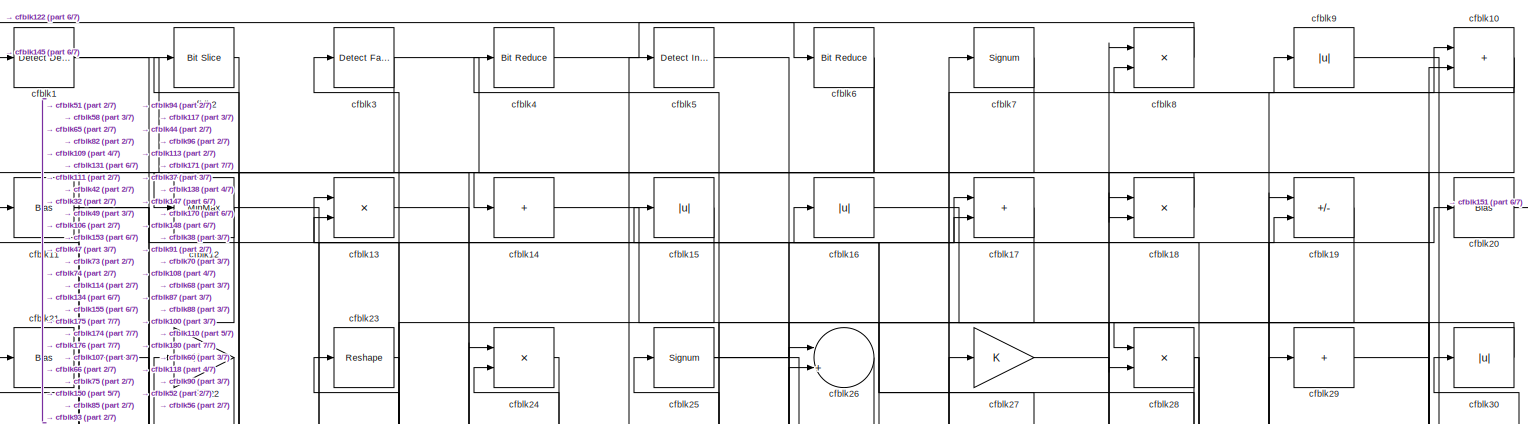
[diagram: root canvas - part 1/7, full width, top band]
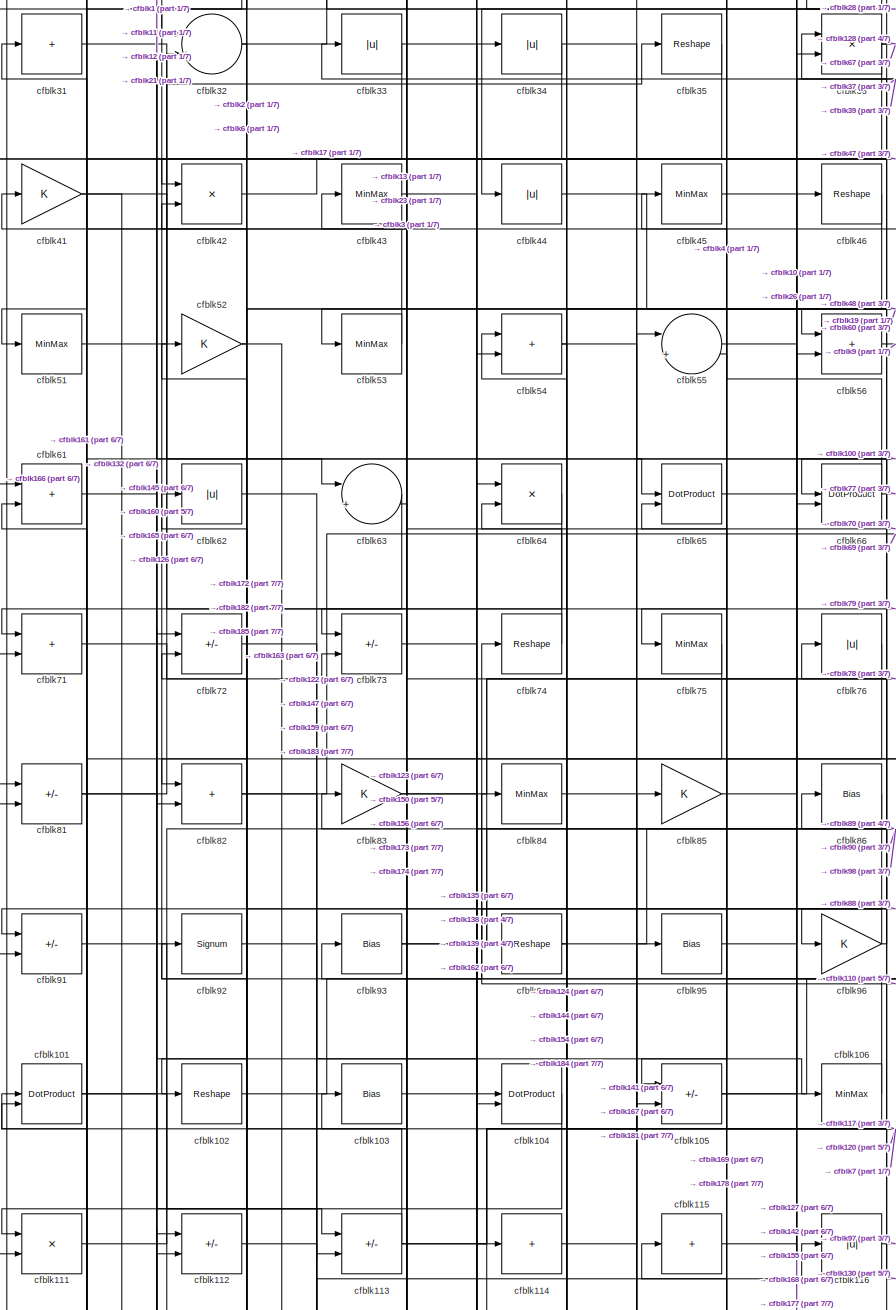
[diagram: root canvas - part 2/7, middle left region]
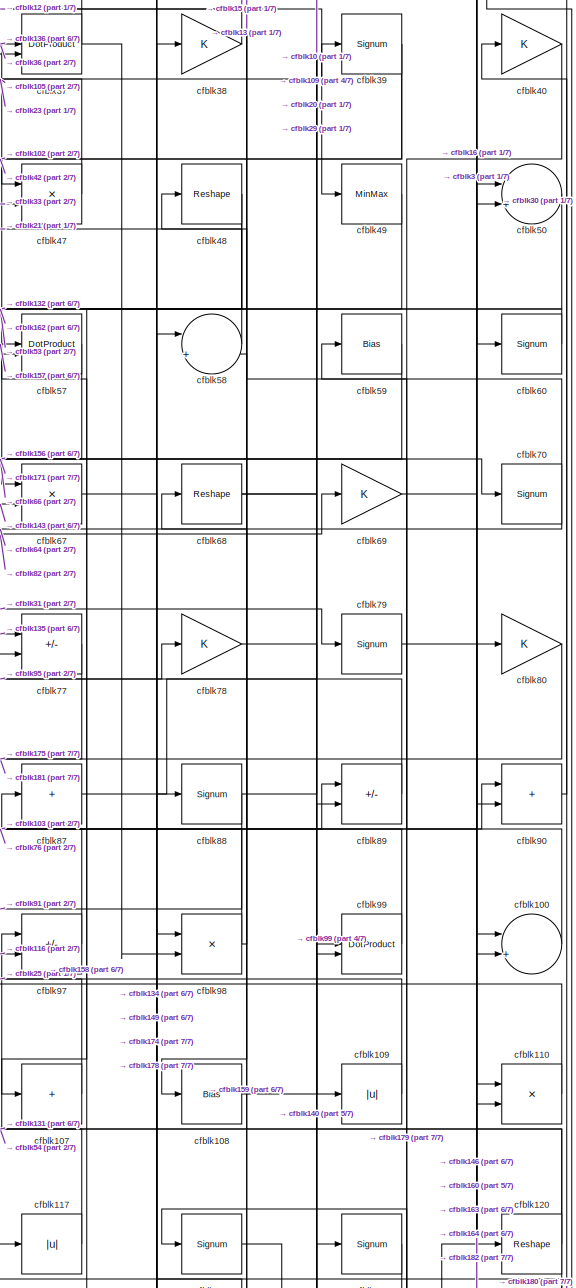
[diagram: root canvas - part 3/7, middle right region]
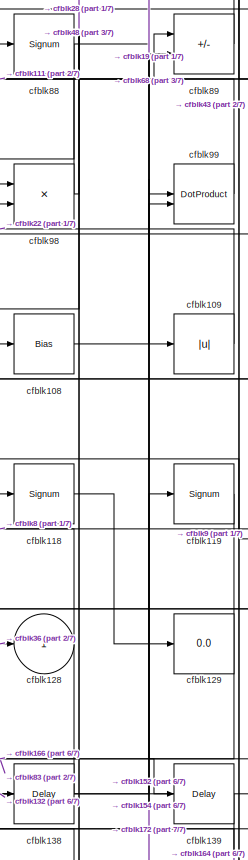
[diagram: root canvas - part 4/7, middle right region]
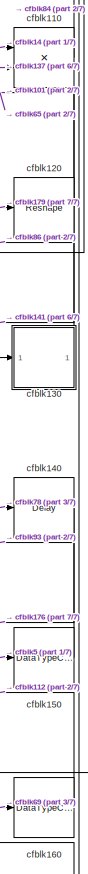
[diagram: root canvas - part 5/7, bottom right region]
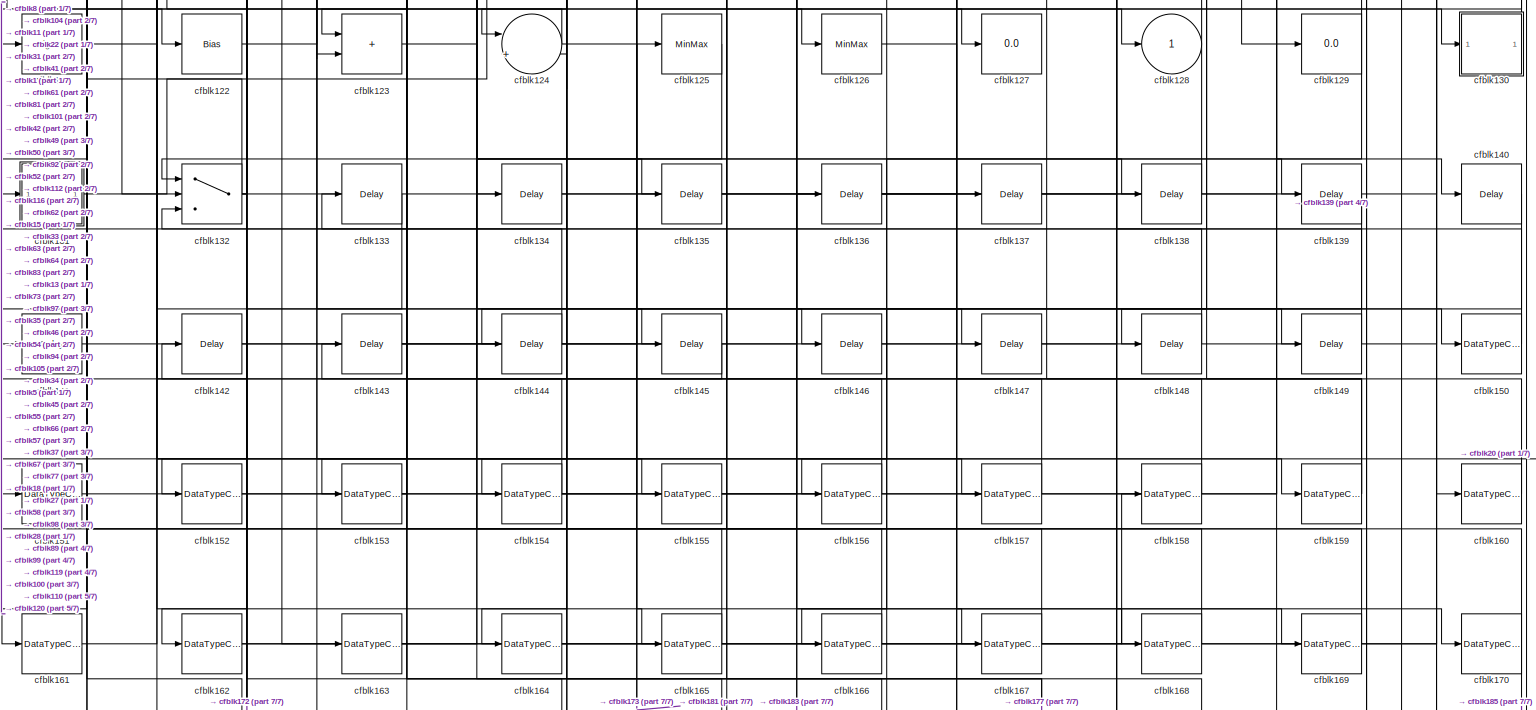
[diagram: root canvas - part 6/7, full width, bottom band]
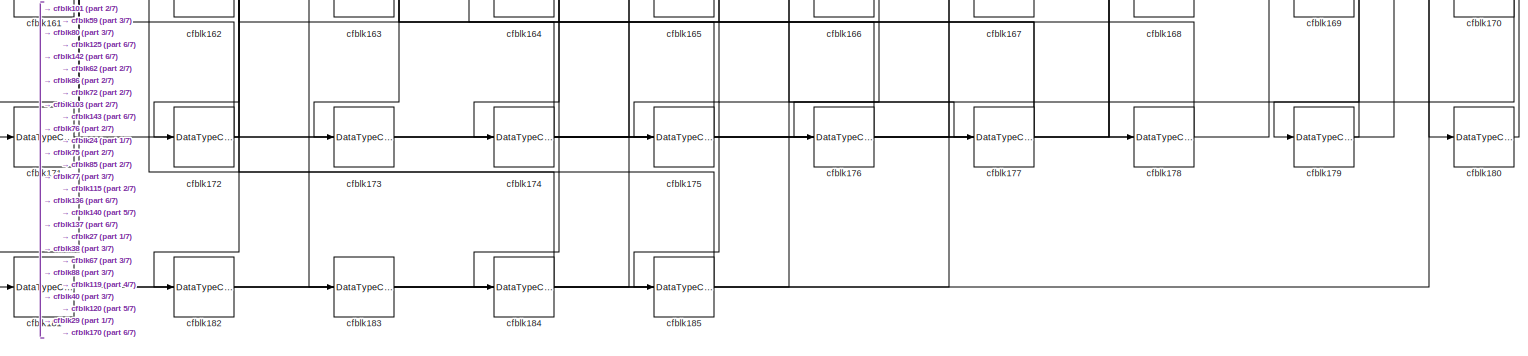
[diagram: root canvas - part 7/7, full width, bottom band]
MODEL slx_fc5fd046897e
KIND model
CONFIG AbsTol = auto
CONFIG EnableMultiTasking = off
CONFIG FixedStep = auto
CONFIG MaxStep = auto
CONFIG MinStep = auto
CONFIG RelTol = 1e-3
CONFIG SampleTimeConstraint = Unconstrained
CONFIG SolverName = VariableStepAuto
CONFIG StartTime = 0.0
CONFIG StopTime = 10.0
BLOCK [Reference] cfblk1  REF=simulink/Logic and Bit
Operations/Detect
Decrease
  LibrarySourceBlock = hdlsllib/Logic and Bit\nOperations/Detect\nDecrease
  SourceBlock = simulink/Logic and Bit\nOperations/Detect\nDecrease
  SourceType = Detect Decrease
BLOCK [Sum] cfblk10
  IconShape = rectangular
BLOCK [Sum] cfblk100
  Inputs = |++
BLOCK [DotProduct] cfblk101
  OutDataTypeStr = Inherit: Inherit via internal rule
BLOCK [Reshape] cfblk102
BLOCK [Bias] cfblk103
  Bias = 0.0
  SaturateOnIntegerOverflow = off
BLOCK [DotProduct] cfblk104
  OutDataTypeStr = Inherit: Inherit via internal rule
BLOCK [Sum] cfblk105
  IconShape = rectangular
  Inputs = +-
BLOCK [MinMax] cfblk106
BLOCK [Sum] cfblk107
  IconShape = rectangular
  Inputs = +
BLOCK [Bias] cfblk108
  Bias = 0.0
  SaturateOnIntegerOverflow = off
BLOCK [Abs] cfblk109
  SaturateOnIntegerOverflow = off
BLOCK [Bias] cfblk11
  Bias = 0.0
  SaturateOnIntegerOverflow = off
BLOCK [Product] cfblk110
  Inputs = */
  RndMeth = Zero
  SaturateOnIntegerOverflow = on
BLOCK [Product] cfblk111
  Inputs = */
  RndMeth = Zero
  SaturateOnIntegerOverflow = on
BLOCK [Sum] cfblk112
  IconShape = rectangular
  Inputs = +-
BLOCK [Sum] cfblk113
  IconShape = rectangular
  Inputs = +-
BLOCK [Sum] cfblk114
  IconShape = rectangular
  Inputs = +
BLOCK [Sum] cfblk115
  IconShape = rectangular
  Inputs = +
BLOCK [Abs] cfblk116
  SaturateOnIntegerOverflow = off
BLOCK [Abs] cfblk117
  SaturateOnIntegerOverflow = off
BLOCK [Signum] cfblk118
BLOCK [Signum] cfblk119
BLOCK [MinMax] cfblk12
BLOCK [Reshape] cfblk120
BLOCK [Signum] cfblk121
BLOCK [Bias] cfblk122
  Bias = 0.0
  SaturateOnIntegerOverflow = off
BLOCK [Sum] cfblk123
  IconShape = rectangular
BLOCK [Sum] cfblk124
  Inputs = |++
BLOCK [MinMax] cfblk125
BLOCK [MinMax] cfblk126
BLOCK [Display] cfblk127
  Decimation = 1
BLOCK [Outport] cfblk128
  VectorParamsAs1DForOutWhenUnconnected = off
BLOCK [Display] cfblk129
  Decimation = 1
BLOCK [Product] cfblk13
  Inputs = */
  RndMeth = Zero
  SaturateOnIntegerOverflow = on
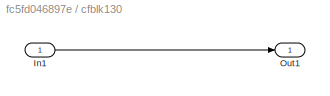
BLOCK [SubSystem] cfblk130
  LibrarySourceBlock = hdlsllib/Ports &\nSubsystems/Subsystem
BLOCK [Inport] cfblk130/In1
BLOCK [Outport] cfblk130/Out1
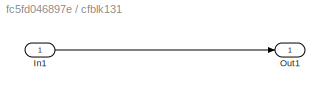
BLOCK [SubSystem] cfblk131
  LibrarySourceBlock = hdlsllib/Ports &\nSubsystems/Subsystem
BLOCK [Inport] cfblk131/In1
BLOCK [Outport] cfblk131/Out1
BLOCK [Switch] cfblk132
  InputSameDT = off
  SaturateOnIntegerOverflow = off
BLOCK [Delay] cfblk133
  InputPortMap = u0
  SampleTime = 1
BLOCK [Delay] cfblk134
  InputPortMap = u0
  SampleTime = 1
BLOCK [Delay] cfblk135
  InputPortMap = u0
  SampleTime = 1
BLOCK [Delay] cfblk136
  InputPortMap = u0
  SampleTime = 1
BLOCK [Delay] cfblk137
  InputPortMap = u0
  SampleTime = 1
BLOCK [Delay] cfblk138
  InputPortMap = u0
  SampleTime = 1
BLOCK [Delay] cfblk139
  InputPortMap = u0
  SampleTime = 1
BLOCK [Sum] cfblk14
  IconShape = rectangular
  Inputs = +
BLOCK [Delay] cfblk140
  InputPortMap = u0
  SampleTime = 1
BLOCK [Delay] cfblk141
  InputPortMap = u0
  SampleTime = 1
BLOCK [Delay] cfblk142
  InputPortMap = u0
  SampleTime = 1
BLOCK [Delay] cfblk143
  InputPortMap = u0
  SampleTime = 1
BLOCK [Delay] cfblk144
  InputPortMap = u0
  SampleTime = 1
BLOCK [Delay] cfblk145
  InputPortMap = u0
  SampleTime = 1
BLOCK [Delay] cfblk146
  InputPortMap = u0
  SampleTime = 1
BLOCK [Delay] cfblk147
  InputPortMap = u0
  SampleTime = 1
BLOCK [Delay] cfblk148
  InputPortMap = u0
  SampleTime = 1
BLOCK [Delay] cfblk149
  InputPortMap = u0
  SampleTime = 1
BLOCK [Abs] cfblk15
  SaturateOnIntegerOverflow = off
BLOCK [DataTypeConversion] cfblk150
  OutDataTypeStr = uint8
  RndMeth = Floor
  SaturateOnIntegerOverflow = off
BLOCK [DataTypeConversion] cfblk151
  OutDataTypeStr = uint8
  RndMeth = Floor
  SaturateOnIntegerOverflow = off
BLOCK [DataTypeConversion] cfblk152
  OutDataTypeStr = uint8
  RndMeth = Floor
  SaturateOnIntegerOverflow = off
BLOCK [DataTypeConversion] cfblk153
  OutDataTypeStr = uint8
  RndMeth = Floor
  SaturateOnIntegerOverflow = off
BLOCK [DataTypeConversion] cfblk154
  RndMeth = Floor
  SaturateOnIntegerOverflow = off
BLOCK [DataTypeConversion] cfblk155
  OutDataTypeStr = uint8
  RndMeth = Floor
  SaturateOnIntegerOverflow = off
BLOCK [DataTypeConversion] cfblk156
  OutDataTypeStr = uint8
  RndMeth = Floor
  SaturateOnIntegerOverflow = off
BLOCK [DataTypeConversion] cfblk157
  OutDataTypeStr = uint8
  RndMeth = Floor
  SaturateOnIntegerOverflow = off
BLOCK [DataTypeConversion] cfblk158
  OutDataTypeStr = uint8
  RndMeth = Floor
  SaturateOnIntegerOverflow = off
BLOCK [DataTypeConversion] cfblk159
  RndMeth = Floor
  SaturateOnIntegerOverflow = off
BLOCK [Abs] cfblk16
  SaturateOnIntegerOverflow = off
BLOCK [DataTypeConversion] cfblk160
  OutDataTypeStr = uint8
  RndMeth = Floor
  SaturateOnIntegerOverflow = off
BLOCK [DataTypeConversion] cfblk161
  OutDataTypeStr = uint8
  RndMeth = Floor
  SaturateOnIntegerOverflow = off
BLOCK [DataTypeConversion] cfblk162
  RndMeth = Floor
  SaturateOnIntegerOverflow = off
BLOCK [DataTypeConversion] cfblk163
  OutDataTypeStr = uint8
  RndMeth = Floor
  SaturateOnIntegerOverflow = off
BLOCK [DataTypeConversion] cfblk164
  OutDataTypeStr = uint8
  RndMeth = Floor
  SaturateOnIntegerOverflow = off
BLOCK [DataTypeConversion] cfblk165
  OutDataTypeStr = uint8
  RndMeth = Floor
  SaturateOnIntegerOverflow = off
BLOCK [DataTypeConversion] cfblk166
  OutDataTypeStr = uint8
  RndMeth = Floor
  SaturateOnIntegerOverflow = off
BLOCK [DataTypeConversion] cfblk167
  OutDataTypeStr = uint8
  RndMeth = Floor
  SaturateOnIntegerOverflow = off
BLOCK [DataTypeConversion] cfblk168
  OutDataTypeStr = uint8
  RndMeth = Floor
  SaturateOnIntegerOverflow = off
BLOCK [DataTypeConversion] cfblk169
  OutDataTypeStr = uint8
  RndMeth = Floor
  SaturateOnIntegerOverflow = off
BLOCK [Sum] cfblk17
  IconShape = rectangular
BLOCK [DataTypeConversion] cfblk170
  RndMeth = Floor
  SaturateOnIntegerOverflow = off
BLOCK [DataTypeConversion] cfblk171
  OutDataTypeStr = uint8
  RndMeth = Floor
  SaturateOnIntegerOverflow = off
BLOCK [DataTypeConversion] cfblk172
  RndMeth = Floor
  SaturateOnIntegerOverflow = off
BLOCK [DataTypeConversion] cfblk173
  OutDataTypeStr = uint8
  RndMeth = Floor
  SaturateOnIntegerOverflow = off
BLOCK [DataTypeConversion] cfblk174
  RndMeth = Floor
  SaturateOnIntegerOverflow = off
BLOCK [DataTypeConversion] cfblk175
  OutDataTypeStr = uint8
  RndMeth = Floor
  SaturateOnIntegerOverflow = off
BLOCK [DataTypeConversion] cfblk176
  OutDataTypeStr = uint8
  RndMeth = Floor
  SaturateOnIntegerOverflow = off
BLOCK [DataTypeConversion] cfblk177
  RndMeth = Floor
  SaturateOnIntegerOverflow = off
BLOCK [DataTypeConversion] cfblk178
  OutDataTypeStr = uint8
  RndMeth = Floor
  SaturateOnIntegerOverflow = off
BLOCK [DataTypeConversion] cfblk179
  RndMeth = Floor
  SaturateOnIntegerOverflow = off
BLOCK [Product] cfblk18
  Inputs = */
  RndMeth = Zero
  SaturateOnIntegerOverflow = on
BLOCK [DataTypeConversion] cfblk180
  OutDataTypeStr = uint8
  RndMeth = Floor
  SaturateOnIntegerOverflow = off
BLOCK [DataTypeConversion] cfblk181
  RndMeth = Floor
  SaturateOnIntegerOverflow = off
BLOCK [DataTypeConversion] cfblk182
  OutDataTypeStr = uint8
  RndMeth = Floor
  SaturateOnIntegerOverflow = off
BLOCK [DataTypeConversion] cfblk183
  OutDataTypeStr = uint8
  RndMeth = Floor
  SaturateOnIntegerOverflow = off
BLOCK [DataTypeConversion] cfblk184
  OutDataTypeStr = uint8
  RndMeth = Floor
  SaturateOnIntegerOverflow = off
BLOCK [DataTypeConversion] cfblk185
  OutDataTypeStr = uint8
  RndMeth = Floor
  SaturateOnIntegerOverflow = off
BLOCK [Sum] cfblk19
  IconShape = rectangular
  Inputs = +-
BLOCK [Reference] cfblk2  REF=hdlsllib/Logic and Bit
Operations/Bit Slice
  SourceBlock = hdlsllib/Logic and Bit\nOperations/Bit Slice
  SourceType = Bit Slice
BLOCK [Bias] cfblk20
  Bias = 0.0
  SaturateOnIntegerOverflow = off
BLOCK [Bias] cfblk21
  Bias = 0.0
  SaturateOnIntegerOverflow = off
BLOCK [Gain] cfblk22
BLOCK [Reshape] cfblk23
BLOCK [Product] cfblk24
  Inputs = */
  RndMeth = Zero
  SaturateOnIntegerOverflow = on
BLOCK [Signum] cfblk25
BLOCK [Sum] cfblk26
  Inputs = |++
BLOCK [Gain] cfblk27
BLOCK [Product] cfblk28
  Inputs = */
  RndMeth = Zero
  SaturateOnIntegerOverflow = on
BLOCK [Sum] cfblk29
  IconShape = rectangular
  Inputs = +
BLOCK [Reference] cfblk3  REF=hdlsllib/Logic and Bit
Operations/Detect Fall
Negative
  SourceBlock = hdlsllib/Logic and Bit\nOperations/Detect Fall\nNegative
  SourceType = Detect Fall Negative
BLOCK [Abs] cfblk30
  SaturateOnIntegerOverflow = off
BLOCK [Sum] cfblk31
  IconShape = rectangular
  Inputs = +
BLOCK [Sum] cfblk32
  Inputs = |++
BLOCK [Abs] cfblk33
  SaturateOnIntegerOverflow = off
BLOCK [Abs] cfblk34
  SaturateOnIntegerOverflow = off
BLOCK [Reshape] cfblk35
BLOCK [Product] cfblk36
  Inputs = */
  RndMeth = Zero
  SaturateOnIntegerOverflow = on
BLOCK [DotProduct] cfblk37
  OutDataTypeStr = Inherit: Inherit via internal rule
BLOCK [Gain] cfblk38
BLOCK [Signum] cfblk39
BLOCK [Reference] cfblk4  REF=hdlsllib/Logic and Bit
Operations/Bit Reduce
  SourceBlock = hdlsllib/Logic and Bit\nOperations/Bit Reduce
  SourceType = Bit Reduce
BLOCK [Gain] cfblk40
BLOCK [Gain] cfblk41
BLOCK [Product] cfblk42
  Inputs = */
  RndMeth = Zero
  SaturateOnIntegerOverflow = on
BLOCK [MinMax] cfblk43
BLOCK [Abs] cfblk44
  SaturateOnIntegerOverflow = off
BLOCK [MinMax] cfblk45
BLOCK [Reshape] cfblk46
BLOCK [Product] cfblk47
  Inputs = */
  RndMeth = Zero
  SaturateOnIntegerOverflow = on
BLOCK [Reshape] cfblk48
BLOCK [MinMax] cfblk49
BLOCK [Reference] cfblk5  REF=simulink/Logic and Bit
Operations/Detect
Increase
  LibrarySourceBlock = hdlsllib/Logic and Bit\nOperations/Detect\nIncrease
  SourceBlock = simulink/Logic and Bit\nOperations/Detect\nIncrease
  SourceType = Detect Increase
BLOCK [Sum] cfblk50
  Inputs = |++
BLOCK [MinMax] cfblk51
BLOCK [Gain] cfblk52
BLOCK [MinMax] cfblk53
BLOCK [Sum] cfblk54
  IconShape = rectangular
BLOCK [Sum] cfblk55
  Inputs = |++
BLOCK [Sum] cfblk56
  IconShape = rectangular
BLOCK [DotProduct] cfblk57
  OutDataTypeStr = Inherit: Inherit via internal rule
BLOCK [Sum] cfblk58
  Inputs = |++
BLOCK [Bias] cfblk59
  Bias = 0.0
  SaturateOnIntegerOverflow = off
BLOCK [Reference] cfblk6  REF=hdlsllib/Logic and Bit
Operations/Bit Reduce
  SourceBlock = hdlsllib/Logic and Bit\nOperations/Bit Reduce
  SourceType = Bit Reduce
BLOCK [Signum] cfblk60
BLOCK [Sum] cfblk61
  IconShape = rectangular
BLOCK [Abs] cfblk62
  SaturateOnIntegerOverflow = off
BLOCK [Sum] cfblk63
  Inputs = |++
BLOCK [Product] cfblk64
  Inputs = */
  RndMeth = Zero
  SaturateOnIntegerOverflow = on
BLOCK [DotProduct] cfblk65
  OutDataTypeStr = Inherit: Inherit via internal rule
BLOCK [DotProduct] cfblk66
  OutDataTypeStr = Inherit: Inherit via internal rule
BLOCK [Product] cfblk67
  Inputs = */
  RndMeth = Zero
  SaturateOnIntegerOverflow = on
BLOCK [Reshape] cfblk68
BLOCK [Gain] cfblk69
BLOCK [Signum] cfblk7
BLOCK [Signum] cfblk70
BLOCK [Sum] cfblk71
  IconShape = rectangular
BLOCK [Sum] cfblk72
  IconShape = rectangular
  Inputs = +-
BLOCK [Sum] cfblk73
  IconShape = rectangular
  Inputs = +-
BLOCK [Reshape] cfblk74
BLOCK [MinMax] cfblk75
BLOCK [Abs] cfblk76
  SaturateOnIntegerOverflow = off
BLOCK [Sum] cfblk77
  IconShape = rectangular
  Inputs = +-
BLOCK [Gain] cfblk78
BLOCK [Signum] cfblk79
BLOCK [Product] cfblk8
  Inputs = */
  RndMeth = Zero
  SaturateOnIntegerOverflow = on
BLOCK [Gain] cfblk80
BLOCK [Sum] cfblk81
  IconShape = rectangular
  Inputs = +-
BLOCK [Sum] cfblk82
  IconShape = rectangular
BLOCK [Gain] cfblk83
BLOCK [MinMax] cfblk84
BLOCK [Gain] cfblk85
BLOCK [Bias] cfblk86
  Bias = 0.0
  SaturateOnIntegerOverflow = off
BLOCK [Sum] cfblk87
  IconShape = rectangular
  Inputs = +
BLOCK [Signum] cfblk88
BLOCK [Sum] cfblk89
  IconShape = rectangular
  Inputs = +-
BLOCK [Abs] cfblk9
  SaturateOnIntegerOverflow = off
BLOCK [Sum] cfblk90
  IconShape = rectangular
BLOCK [Sum] cfblk91
  IconShape = rectangular
  Inputs = +-
BLOCK [Signum] cfblk92
BLOCK [Bias] cfblk93
  Bias = 0.0
  SaturateOnIntegerOverflow = off
BLOCK [Reshape] cfblk94
BLOCK [Bias] cfblk95
  Bias = 0.0
  SaturateOnIntegerOverflow = off
BLOCK [Gain] cfblk96
BLOCK [Sum] cfblk97
  IconShape = rectangular
  Inputs = +-
BLOCK [Product] cfblk98
  Inputs = */
  RndMeth = Zero
  SaturateOnIntegerOverflow = on
BLOCK [DotProduct] cfblk99
  OutDataTypeStr = Inherit: Inherit via internal rule
LINE cfblk100:1 -> cfblk66:1
NET cfblk101:1 -> cfblk113:2, cfblk126:1
LINE cfblk102:1 -> cfblk74:1
LINE cfblk103:1 -> cfblk90:1
LINE cfblk104:1 -> cfblk161:1
NET cfblk105:1 -> cfblk37:2, cfblk39:1
LINE cfblk106:1 -> cfblk13:1
LINE cfblk107:1 -> cfblk25:1
LINE cfblk108:1 -> cfblk19:1
LINE cfblk109:1 -> cfblk22:1
NET cfblk10:1 -> cfblk18:2, cfblk8:2
LINE cfblk110:1 -> cfblk84:1
LINE cfblk111:1 -> cfblk89:1
LINE cfblk112:1 -> cfblk159:1
NET cfblk113:1 -> cfblk52:1, cfblk7:1, cfblk95:1
LINE cfblk114:1 -> cfblk55:1
LINE cfblk115:1 -> cfblk177:1
LINE cfblk116:1 -> cfblk97:2
LINE cfblk117:1 -> cfblk54:1
LINE cfblk118:1 -> cfblk129:1
LINE cfblk119:1 -> cfblk166:1
NET cfblk11:1 -> cfblk19:2, cfblk65:1
NET cfblk120:1 -> cfblk101:1, cfblk141:1, cfblk65:2
LINE cfblk121:1 -> cfblk157:1
LINE cfblk122:1 -> cfblk116:1
LINE cfblk123:1 -> cfblk149:1
NET cfblk124:1 -> cfblk121:1, cfblk146:1
LINE cfblk125:1 -> cfblk172:1
LINE cfblk126:1 -> cfblk169:1
NET cfblk12:1 -> cfblk49:1, cfblk82:2
LINE cfblk130/In1:1 -> cfblk130/Out1:1
LINE cfblk130:1 -> cfblk86:1
LINE cfblk131/In1:1 -> cfblk131/Out1:1
LINE cfblk131:1 -> cfblk97:1
NET cfblk132:1 -> cfblk31:1, cfblk42:2, cfblk89:2, cfblk92:1
LINE cfblk133:1 -> cfblk152:1
LINE cfblk134:1 -> cfblk58:1
LINE cfblk135:1 -> cfblk77:1
LINE cfblk136:1 -> cfblk37:1
LINE cfblk137:1 -> cfblk110:2
LINE cfblk138:1 -> cfblk8:1
LINE cfblk139:1 -> cfblk164:1
LINE cfblk13:1 -> cfblk134:1
LINE cfblk140:1 -> cfblk176:1
LINE cfblk141:1 -> cfblk105:2
LINE cfblk142:1 -> cfblk66:2
LINE cfblk143:1 -> cfblk67:2
LINE cfblk144:1 -> cfblk81:1
LINE cfblk145:1 -> cfblk1:1
LINE cfblk146:1 -> cfblk100:2
LINE cfblk147:1 -> cfblk18:1
LINE cfblk148:1 -> cfblk132:3
LINE cfblk149:1 -> cfblk98:1
LINE cfblk14:1 -> cfblk110:1
LINE cfblk150:1 -> cfblk93:1
LINE cfblk151:1 -> cfblk5:1
LINE cfblk152:1 -> cfblk99:2
LINE cfblk153:1 -> cfblk133:1
NET cfblk154:1 -> cfblk64:1, cfblk99:1
LINE cfblk155:1 -> cfblk46:1
LINE cfblk156:1 -> cfblk83:1
LINE cfblk157:1 -> cfblk57:1
LINE cfblk158:1 -> cfblk57:2
NET cfblk159:1 -> cfblk55:2, cfblk58:2, cfblk63:2
LINE cfblk15:1 -> cfblk153:1
LINE cfblk160:1 -> cfblk112:1
LINE cfblk161:1 -> cfblk112:2
NET cfblk162:1 -> cfblk158:1, cfblk34:1
LINE cfblk163:1 -> cfblk50:1
LINE cfblk164:1 -> cfblk50:2
LINE cfblk165:1 -> cfblk33:1
LINE cfblk166:1 -> cfblk61:1
LINE cfblk167:1 -> cfblk61:2
LINE cfblk168:1 -> cfblk104:1
LINE cfblk169:1 -> cfblk45:1
LINE cfblk16:1 -> cfblk100:1
NET cfblk170:1 -> cfblk11:1, cfblk185:1
LINE cfblk171:1 -> cfblk27:1
NET cfblk172:1 -> cfblk101:2, cfblk119:1, cfblk62:1
LINE cfblk173:1 -> cfblk125:1
NET cfblk174:1 -> cfblk103:1, cfblk38:1, cfblk88:1
LINE cfblk175:1 -> cfblk24:1
LINE cfblk176:1 -> cfblk24:2
NET cfblk177:1 -> cfblk142:1, cfblk143:1
LINE cfblk178:1 -> cfblk115:1
NET cfblk179:1 -> cfblk120:1, cfblk59:1
LINE cfblk17:1 -> cfblk75:1
LINE cfblk180:1 -> cfblk40:1
NET cfblk181:1 -> cfblk137:1, cfblk85:1
LINE cfblk182:1 -> cfblk80:1
LINE cfblk183:1 -> cfblk136:1
LINE cfblk184:1 -> cfblk72:1
LINE cfblk185:1 -> cfblk72:2
LINE cfblk18:1 -> cfblk12:1
LINE cfblk19:1 -> cfblk96:1
NET cfblk1:1 -> cfblk114:1, cfblk155:1
LINE cfblk20:1 -> cfblk151:1
LINE cfblk21:1 -> cfblk106:1
LINE cfblk22:1 -> cfblk131:1
LINE cfblk23:1 -> cfblk73:1
LINE cfblk24:1 -> cfblk174:1
NET cfblk25:1 -> cfblk117:1, cfblk28:2
LINE cfblk26:1 -> cfblk44:1
LINE cfblk27:1 -> cfblk170:1
NET cfblk28:1 -> cfblk108:1, cfblk148:1, cfblk91:2
LINE cfblk29:1 -> cfblk180:1
LINE cfblk2:1 -> cfblk32:1
LINE cfblk30:1 -> cfblk28:1
LINE cfblk31:1 -> cfblk79:1
NET cfblk32:1 -> cfblk17:1, cfblk82:1
NET cfblk33:1 -> cfblk111:1, cfblk47:2
NET cfblk34:1 -> cfblk167:1, cfblk71:2
LINE cfblk35:1 -> cfblk144:1
NET cfblk36:1 -> cfblk128:1, cfblk67:1, cfblk81:2
NET cfblk37:1 -> cfblk16:1, cfblk98:2
LINE cfblk38:1 -> cfblk15:1
NET cfblk39:1 -> cfblk102:1, cfblk54:2
NET cfblk3:1 -> cfblk51:1, cfblk60:1
LINE cfblk40:1 -> cfblk179:1
NET cfblk41:1 -> cfblk132:2, cfblk63:1
LINE cfblk42:1 -> cfblk47:1
LINE cfblk43:1 -> cfblk138:1
LINE cfblk44:1 -> cfblk56:1
LINE cfblk45:1 -> cfblk168:1
LINE cfblk46:1 -> cfblk154:1
LINE cfblk47:1 -> cfblk23:1
NET cfblk48:1 -> cfblk105:1, cfblk107:1
LINE cfblk49:1 -> cfblk132:1
LINE cfblk4:1 -> cfblk6:1
LINE cfblk50:1 -> cfblk162:1
LINE cfblk51:1 -> cfblk32:2
NET cfblk52:1 -> cfblk163:1, cfblk2:1
LINE cfblk53:1 -> cfblk41:1
NET cfblk54:1 -> cfblk124:2, cfblk70:1
LINE cfblk55:1 -> cfblk127:1
LINE cfblk56:1 -> cfblk9:1
LINE cfblk57:1 -> cfblk156:1
LINE cfblk58:1 -> cfblk21:1
LINE cfblk59:1 -> cfblk171:1
LINE cfblk5:1 -> cfblk150:1
LINE cfblk60:1 -> cfblk53:1
LINE cfblk61:1 -> cfblk165:1
LINE cfblk62:1 -> cfblk123:2
LINE cfblk63:1 -> cfblk71:1
LINE cfblk64:1 -> cfblk123:1
LINE cfblk65:1 -> cfblk36:2
NET cfblk66:1 -> cfblk4:1, cfblk77:2
LINE cfblk67:1 -> cfblk178:1
NET cfblk68:1 -> cfblk109:1, cfblk20:1
LINE cfblk69:1 -> cfblk160:1
NET cfblk6:1 -> cfblk111:2, cfblk42:1
NET cfblk70:1 -> cfblk13:2, cfblk64:2
LINE cfblk71:1 -> cfblk73:2
LINE cfblk72:1 -> cfblk183:1
LINE cfblk73:1 -> cfblk135:1
LINE cfblk74:1 -> cfblk3:1
LINE cfblk75:1 -> cfblk184:1
LINE cfblk76:1 -> cfblk173:1
LINE cfblk77:1 -> cfblk175:1
LINE cfblk78:1 -> cfblk140:1
LINE cfblk79:1 -> cfblk90:2
LINE cfblk7:1 -> cfblk14:1
LINE cfblk80:1 -> cfblk181:1
NET cfblk81:1 -> cfblk145:1, cfblk35:1
NET cfblk82:1 -> cfblk104:2, cfblk69:1
NET cfblk83:1 -> cfblk139:1, cfblk56:2
LINE cfblk84:1 -> cfblk130:1
LINE cfblk85:1 -> cfblk17:2
LINE cfblk86:1 -> cfblk182:1
LINE cfblk87:1 -> cfblk29:1
NET cfblk88:1 -> cfblk10:1, cfblk91:1
LINE cfblk89:1 -> cfblk43:1
LINE cfblk8:1 -> cfblk122:1
LINE cfblk90:1 -> cfblk30:1
LINE cfblk91:1 -> cfblk113:1
LINE cfblk92:1 -> cfblk147:1
NET cfblk93:1 -> cfblk10:2, cfblk26:1
NET cfblk94:1 -> cfblk124:1, cfblk26:2
LINE cfblk95:1 -> cfblk78:1
NET cfblk96:1 -> cfblk36:1, cfblk94:1
LINE cfblk97:1 -> cfblk87:1
NET cfblk98:1 -> cfblk68:1, cfblk76:1
LINE cfblk99:1 -> cfblk48:1
LINE cfblk9:1 -> cfblk118:1
note: NET lines group one-source signal fan-out (src -> all destinations, sorted); 1:1 wires keep LINE
